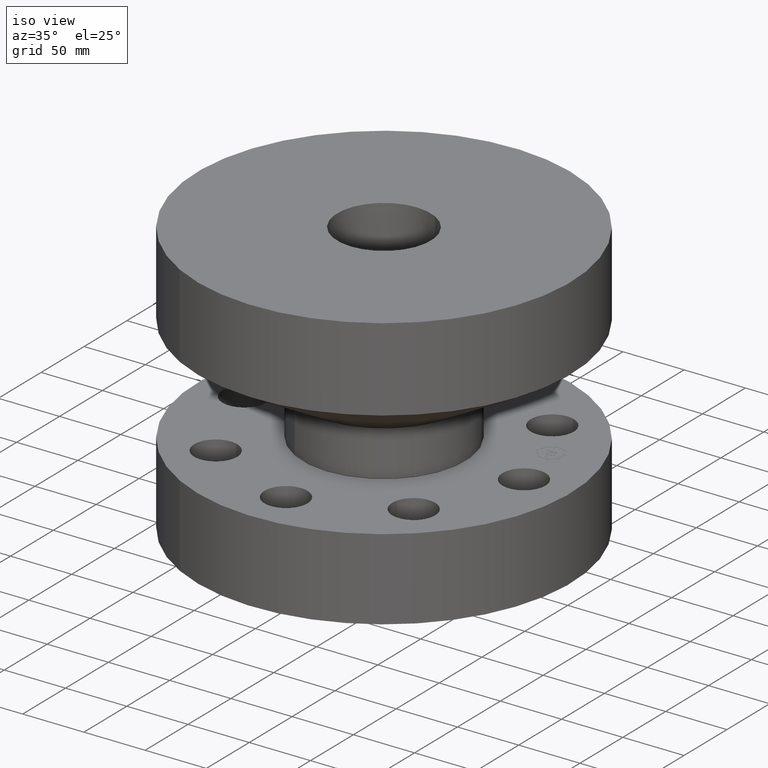
[diagram: clean part render]
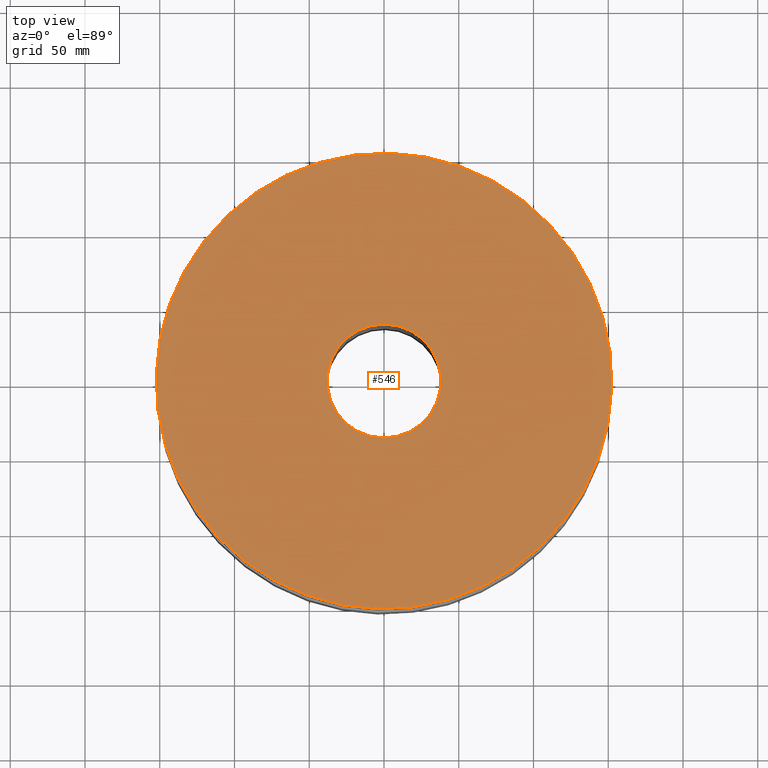
[diagram: tour spotlight — one face highlighted and labeled with its STEP entity id]
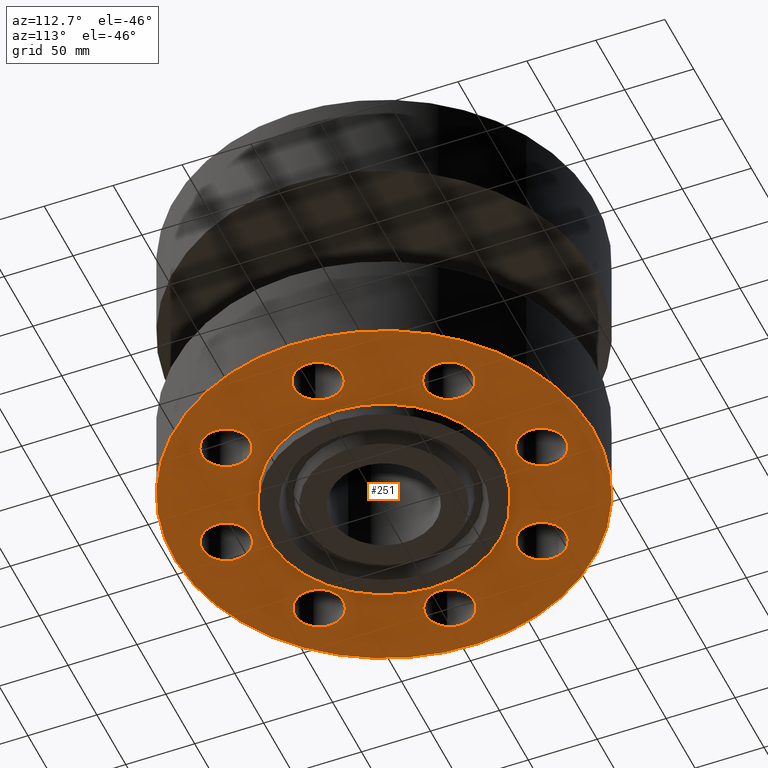
[diagram: tour spotlight — one face highlighted and labeled with its STEP entity id]
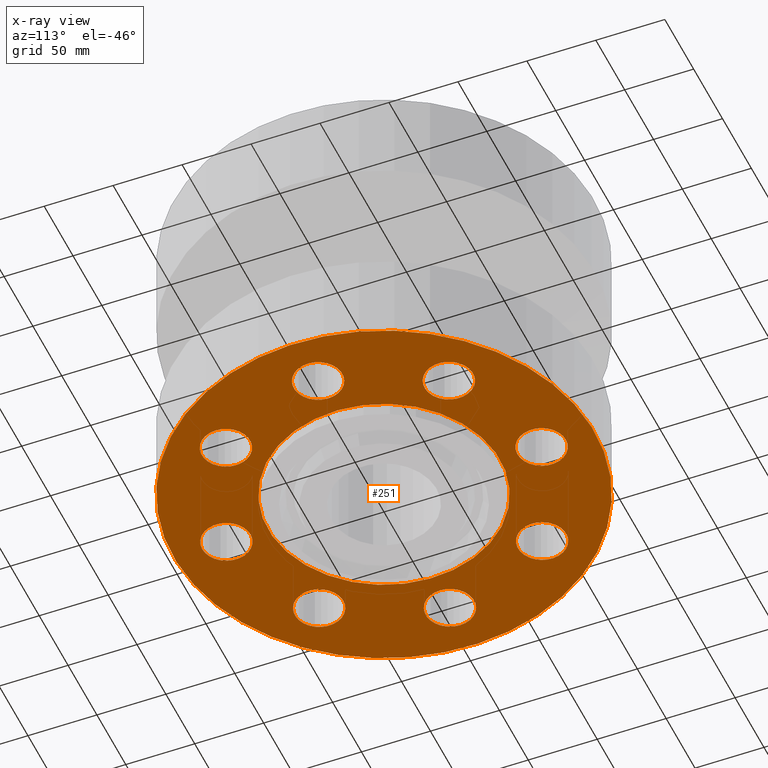
[diagram: x-ray of the same camera — body ghosted, this tour face saturated]
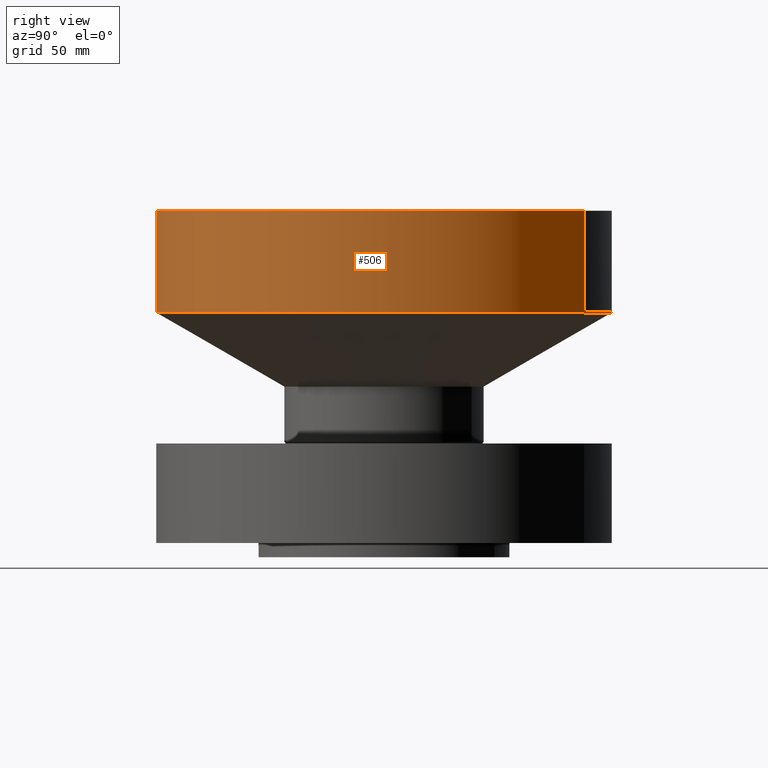
[diagram: tour spotlight — one face highlighted and labeled with its STEP entity id]
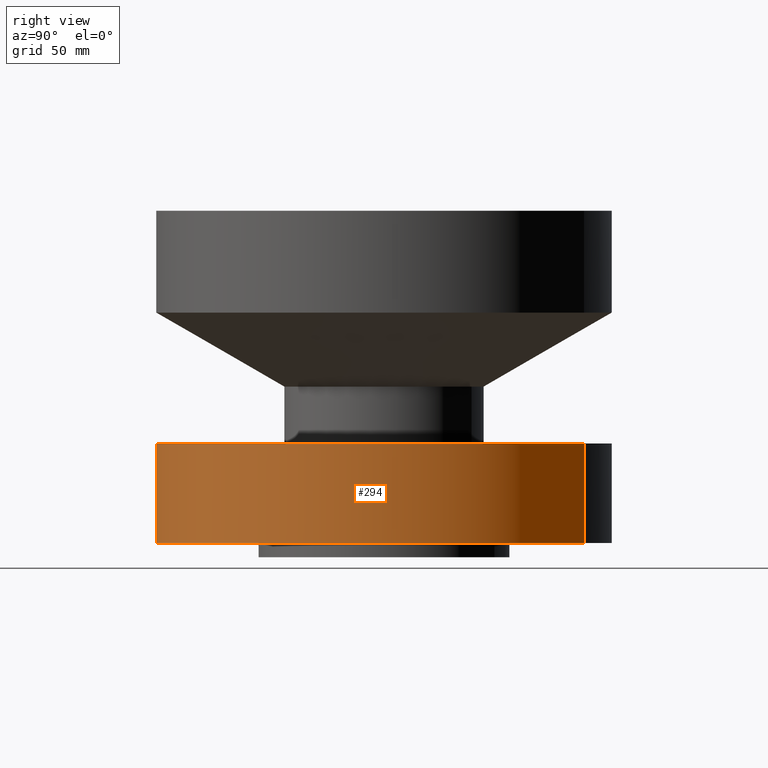
[diagram: tour spotlight — one face highlighted and labeled with its STEP entity id]
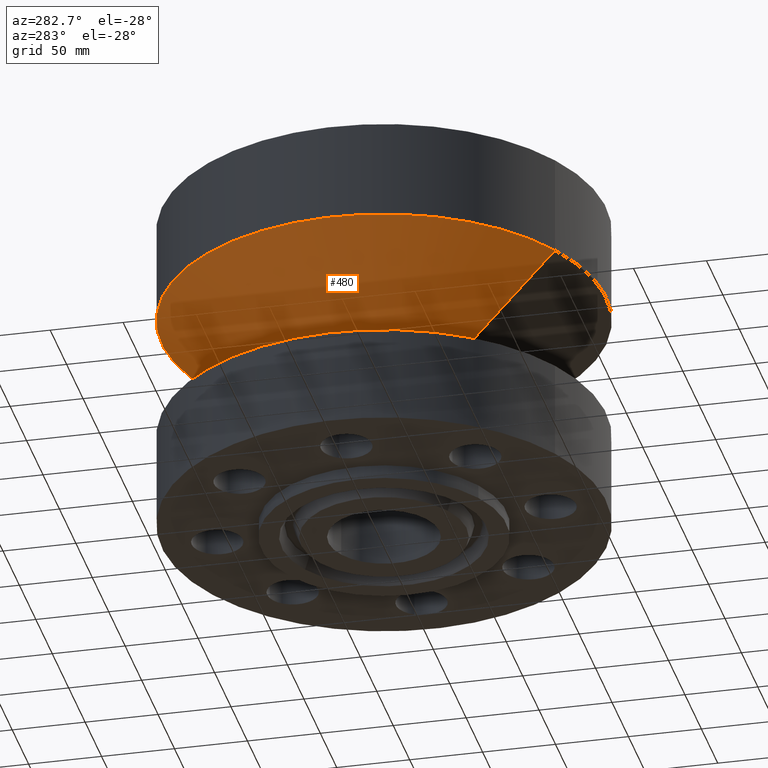
[diagram: tour spotlight — one face highlighted and labeled with its STEP entity id]
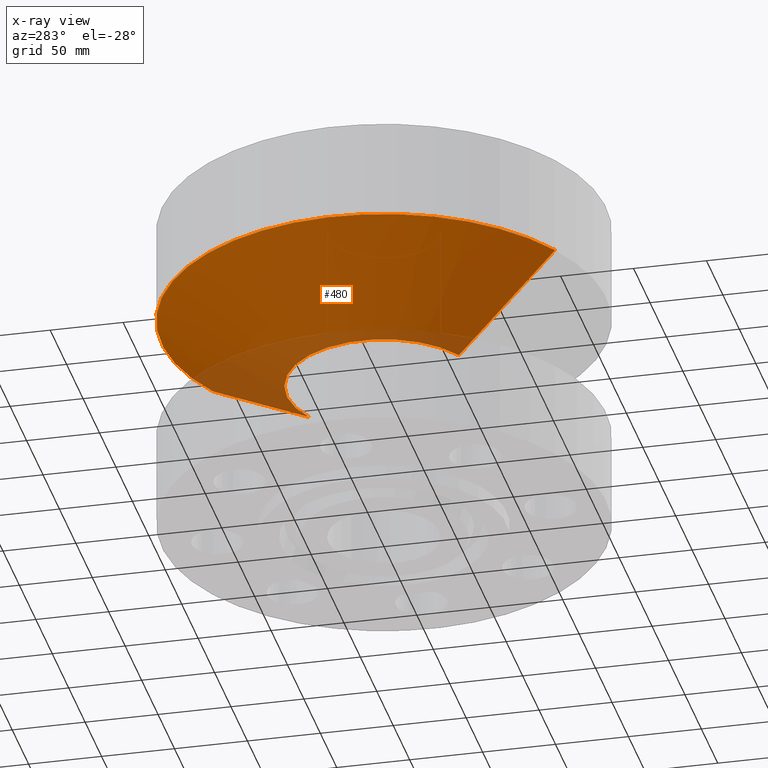
[diagram: x-ray of the same camera — body ghosted, this tour face saturated]
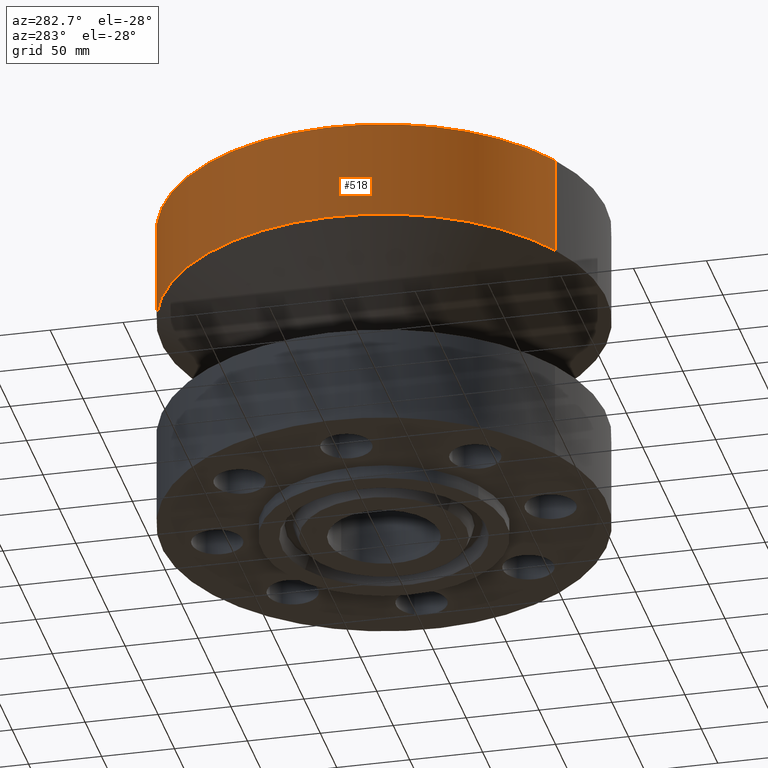
[diagram: tour spotlight — one face highlighted and labeled with its STEP entity id]
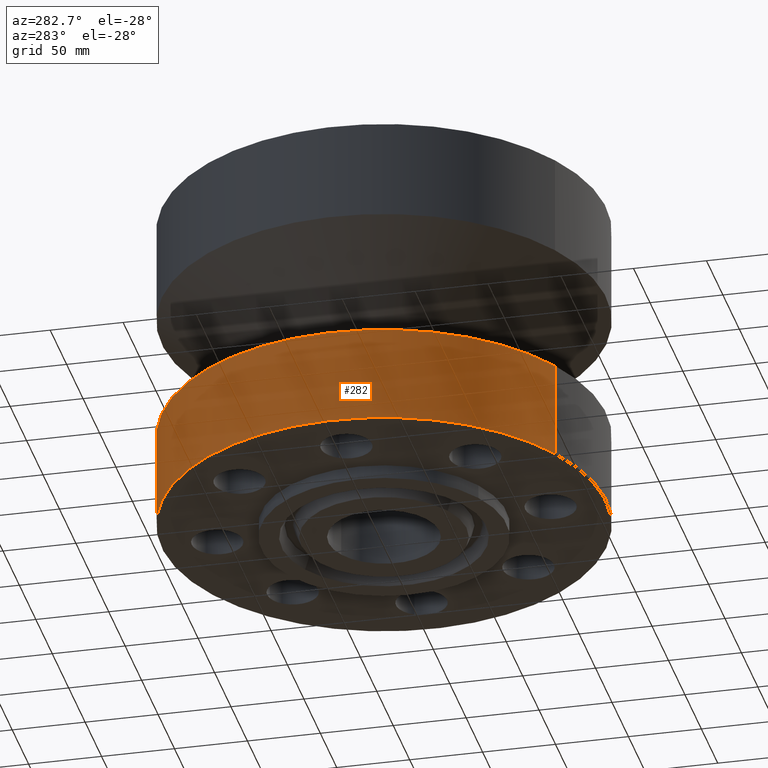
[diagram: tour spotlight — one face highlighted and labeled with its STEP entity id]
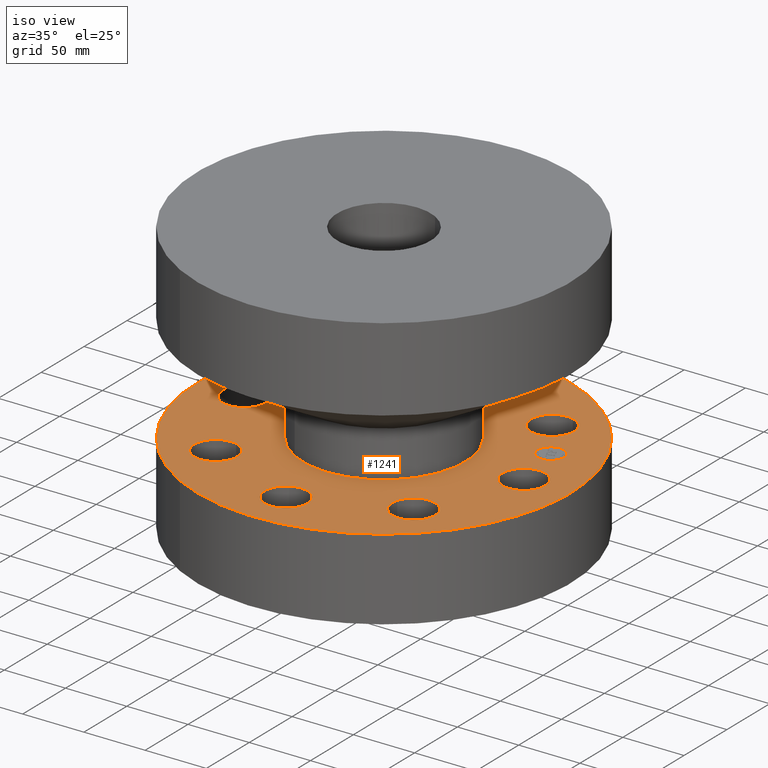
[diagram: tour spotlight — one face highlighted and labeled with its STEP entity id]
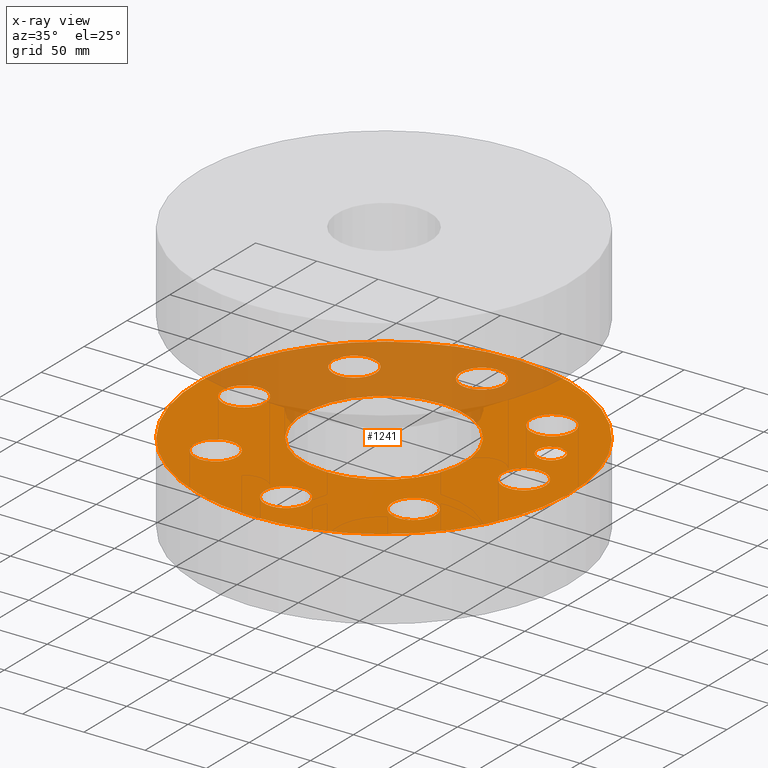
[diagram: x-ray of the same camera — body ghosted, this tour face saturated]
A machine part: a face-by-face anatomy tour. The part has 431 B-rep faces; the first image is the clean iso view, then the 8 largest visible faces are spotlighted one at a time (largest first), each with its STEP entity span.

Face 1 — top view, entity #546. In plain terms, the highlighted planar face has unit normal (0, 0, -1).
Definition (entity closure, byte-faithful):
#490=AXIS2_PLACEMENT_3D('Circle Axis2P3D',#488,#489,$) ;
#509=AXIS2_PLACEMENT_3D('Circle Axis2P3D',#507,#508,$) ;
#522=AXIS2_PLACEMENT_3D('Plane Axis2P3D',#519,#520,#521) ;
#530=AXIS2_PLACEMENT_3D('Circle Axis2P3D',#528,#529,$) ;
#539=AXIS2_PLACEMENT_3D('Circle Axis2P3D',#537,#538,$) ;
#485=CARTESIAN_POINT('Vertex',(2.87655323164,5.26549537136,8.75000000003)) ;
#488=CARTESIAN_POINT('Axis2P3D Location',(0.,0.,8.75000000004)) ;
#492=CARTESIAN_POINT('Vertex',(-2.87655323164,-5.26549537136,8.75000000003)) ;
#507=CARTESIAN_POINT('Axis2P3D Location',(0.,0.,8.75000000004)) ;
#519=CARTESIAN_POINT('Axis2P3D Location',(0.,6.00000000002,8.75000000003)) ;
#528=CARTESIAN_POINT('Axis2P3D Location',(0.,0.,8.75000000003)) ;
#532=CARTESIAN_POINT('Vertex',(-0.719138307909,-1.31637384284,8.75000000004)) ;
#534=CARTESIAN_POINT('Vertex',(0.719138307909,1.31637384284,8.75000000004)) ;
#537=CARTESIAN_POINT('Axis2P3D Location',(0.,0.,8.75000000003)) ;
#489=DIRECTION('Axis2P3D Direction',(0.,0.,-0.0393700787402)) ;
#508=DIRECTION('Axis2P3D Direction',(0.,0.,-0.0393700787402)) ;
#520=DIRECTION('Axis2P3D Direction',(0.,0.,-0.0393700787402)) ;
#521=DIRECTION('Axis2P3D XDirection',(0.0393700787402,0.,0.)) ;
#529=DIRECTION('Axis2P3D Direction',(0.,0.,-0.0393700787402)) ;
#538=DIRECTION('Axis2P3D Direction',(0.,0.,-0.0393700787402)) ;
#525=ORIENTED_EDGE('',*,*,#494,.F.) ;
#526=ORIENTED_EDGE('',*,*,#511,.F.) ;
#543=ORIENTED_EDGE('',*,*,#536,.T.) ;
#544=ORIENTED_EDGE('',*,*,#541,.T.) ;
#545=FACE_BOUND('',#542,.T.) ;
#546=ADVANCED_FACE('PartBody',(#527,#545),#523,.F.) ;
#491=CIRCLE('generated circle',#490,6.00000000002) ;
#510=CIRCLE('generated circle',#509,6.00000000002) ;
#531=CIRCLE('generated circle',#530,1.50000000001) ;
#540=CIRCLE('generated circle',#539,1.50000000001) ;
#494=EDGE_CURVE('',#486,#493,#491,.T.) ;
#511=EDGE_CURVE('',#493,#486,#510,.T.) ;
#536=EDGE_CURVE('',#533,#535,#531,.T.) ;
#541=EDGE_CURVE('',#535,#533,#540,.T.) ;
#524=EDGE_LOOP('',(#525,#526)) ;
#542=EDGE_LOOP('',(#543,#544)) ;
#527=FACE_OUTER_BOUND('',#524,.T.) ;
#523=PLANE('',#522) ;
#486=VERTEX_POINT('',#485) ;
#493=VERTEX_POINT('',#492) ;
#533=VERTEX_POINT('',#532) ;
#535=VERTEX_POINT('',#534) ;

Face 2 — auxiliary view, entity #251. An x-ray twin of the same camera follows (body ghosted, this face saturated) — the face is partly hidden behind the body. In plain terms, the highlighted planar face has unit normal (0, 0, -1).
Definition (entity closure, byte-faithful):
#51=AXIS2_PLACEMENT_3D('Circle Axis2P3D',#49,#50,$) ;
#78=AXIS2_PLACEMENT_3D('Plane Axis2P3D',#75,#76,#77) ;
#82=AXIS2_PLACEMENT_3D('Circle Axis2P3D',#80,#81,$) ;
#91=AXIS2_PLACEMENT_3D('Circle Axis2P3D',#89,#90,$) ;
#100=AXIS2_PLACEMENT_3D('Circle Axis2P3D',#98,#99,$) ;
#109=AXIS2_PLACEMENT_3D('Circle Axis2P3D',#107,#108,$) ;
#118=AXIS2_PLACEMENT_3D('Circle Axis2P3D',#116,#117,$) ;
#127=AXIS2_PLACEMENT_3D('Circle Axis2P3D',#125,#126,$) ;
#136=AXIS2_PLACEMENT_3D('Circle Axis2P3D',#134,#135,$) ;
#145=AXIS2_PLACEMENT_3D('Circle Axis2P3D',#143,#144,$) ;
#154=AXIS2_PLACEMENT_3D('Circle Axis2P3D',#152,#153,$) ;
#163=AXIS2_PLACEMENT_3D('Circle Axis2P3D',#161,#162,$) ;
#172=AXIS2_PLACEMENT_3D('Circle Axis2P3D',#170,#171,$) ;
#181=AXIS2_PLACEMENT_3D('Circle Axis2P3D',#179,#180,$) ;
#190=AXIS2_PLACEMENT_3D('Circle Axis2P3D',#188,#189,$) ;
#199=AXIS2_PLACEMENT_3D('Circle Axis2P3D',#197,#198,$) ;
#208=AXIS2_PLACEMENT_3D('Circle Axis2P3D',#206,#207,$) ;
#217=AXIS2_PLACEMENT_3D('Circle Axis2P3D',#215,#216,$) ;
#226=AXIS2_PLACEMENT_3D('Circle Axis2P3D',#224,#225,$) ;
#235=AXIS2_PLACEMENT_3D('Circle Axis2P3D',#233,#234,$) ;
#244=AXIS2_PLACEMENT_3D('Circle Axis2P3D',#242,#243,$) ;
#46=CARTESIAN_POINT('Vertex',(5.10553196772,0.330803621638,2.2401153548E-016)) ;
#49=CARTESIAN_POINT('Axis2P3D Location',(4.50000000002,0.,0.)) ;
#53=CARTESIAN_POINT('Vertex',(3.89446803231,-0.330803621638,2.2401153548E-016)) ;
#75=CARTESIAN_POINT('Axis2P3D Location',(0.,2.43537684644,0.)) ;
#80=CARTESIAN_POINT('Axis2P3D Location',(0.,0.,0.)) ;
#84=CARTESIAN_POINT('Vertex',(-2.87655323164,-5.26549537136,1.1189649382E-015)) ;
#86=CARTESIAN_POINT('Vertex',(2.87655323164,5.26549537136,1.1189649382E-015)) ;
#89=CARTESIAN_POINT('Axis2P3D Location',(0.,0.,0.)) ;
#98=CARTESIAN_POINT('Axis2P3D Location',(4.50000000002,0.,0.)) ;
#107=CARTESIAN_POINT('Axis2P3D Location',(0.,0.,0.)) ;
#111=CARTESIAN_POINT('Vertex',(1.58809709663,2.90699223627,5.59482469102E-016)) ;
#113=CARTESIAN_POINT('Vertex',(-1.58809709663,-2.90699223627,5.59482469102E-016)) ;
#116=CARTESIAN_POINT('Axis2P3D Location',(0.,0.,0.)) ;
#125=CARTESIAN_POINT('Axis2P3D Location',(3.18198051535,-3.18198051535,0.)) ;
#129=CARTESIAN_POINT('Vertex',(3.84406976004,-3.37624279184,0.)) ;
#131=CARTESIAN_POINT('Vertex',(2.51989127066,-2.98771823886,0.)) ;
#134=CARTESIAN_POINT('Axis2P3D Location',(3.18198051535,-3.18198051535,0.)) ;
#143=CARTESIAN_POINT('Axis2P3D Location',(-4.19611851827E-016,-4.50000000002,0.)) ;
#147=CARTESIAN_POINT('Vertex',(0.330803621638,-5.10553196772,0.)) ;
#149=CARTESIAN_POINT('Vertex',(-0.330803621638,-3.89446803231,0.)) ;
#152=CARTESIAN_POINT('Axis2P3D Location',(5.59482469102E-016,-4.50000000002,0.)) ;
#161=CARTESIAN_POINT('Axis2P3D Location',(-3.18198051535,-3.18198051535,0.)) ;
#165=CARTESIAN_POINT('Vertex',(-3.37624279184,-3.84406976004,0.)) ;
#167=CARTESIAN_POINT('Vertex',(-2.98771823886,-2.51989127066,0.)) ;
#170=CARTESIAN_POINT('Axis2P3D Location',(-3.18198051535,-3.18198051535,0.)) ;
#179=CARTESIAN_POINT('Axis2P3D Location',(-4.50000000002,-8.39223703654E-016,0.)) ;
#183=CARTESIAN_POINT('Vertex',(-5.10553196772,-0.330803621638,0.)) ;
#185=CARTESIAN_POINT('Vertex',(-3.89446803231,0.330803621638,0.)) ;
#188=CARTESIAN_POINT('Axis2P3D Location',(-4.50000000002,-5.59482469102E-016,0.)) ;
#197=CARTESIAN_POINT('Axis2P3D Location',(-3.18198051535,3.18198051535,0.)) ;
#201=CARTESIAN_POINT('Vertex',(-3.84406976004,3.37624279184,0.)) ;
#203=CARTESIAN_POINT('Vertex',(-2.51989127066,2.98771823886,0.)) ;
#206=CARTESIAN_POINT('Axis2P3D Location',(-3.18198051535,3.18198051535,0.)) ;
#215=CARTESIAN_POINT('Axis2P3D Location',(-6.99353086378E-016,4.50000000002,0.)) ;
#219=CARTESIAN_POINT('Vertex',(-0.330803621638,5.10553196772,0.)) ;
#221=CARTESIAN_POINT('Vertex',(0.330803621638,3.89446803231,0.)) ;
#224=CARTESIAN_POINT('Axis2P3D Location',(-1.1189649382E-015,4.50000000002,0.)) ;
#233=CARTESIAN_POINT('Axis2P3D Location',(3.18198051535,3.18198051535,0.)) ;
#237=CARTESIAN_POINT('Vertex',(3.37624279184,3.84406976004,0.)) ;
#239=CARTESIAN_POINT('Vertex',(2.98771823886,2.51989127066,0.)) ;
#242=CARTESIAN_POINT('Axis2P3D Location',(3.18198051535,3.18198051535,0.)) ;
#50=DIRECTION('Axis2P3D Direction',(0.,-0.,0.0393700787402)) ;
#76=DIRECTION('Axis2P3D Direction',(0.,0.,-0.0393700787402)) ;
#77=DIRECTION('Axis2P3D XDirection',(0.0393700787402,0.,0.)) ;
#81=DIRECTION('Axis2P3D Direction',(0.,0.,-0.0393700787402)) ;
#90=DIRECTION('Axis2P3D Direction',(0.,0.,-0.0393700787402)) ;
#99=DIRECTION('Axis2P3D Direction',(0.,0.,-0.0393700787402)) ;
#108=DIRECTION('Axis2P3D Direction',(0.,0.,-0.0393700787402)) ;
#117=DIRECTION('Axis2P3D Direction',(0.,0.,-0.0393700787402)) ;
#126=DIRECTION('Axis2P3D Direction',(0.,0.,-0.0393700787402)) ;
#135=DIRECTION('Axis2P3D Direction',(0.,0.,-0.0393700787402)) ;
#144=DIRECTION('Axis2P3D Direction',(0.,0.,-0.0393700787402)) ;
#153=DIRECTION('Axis2P3D Direction',(0.,0.,-0.0393700787402)) ;
#162=DIRECTION('Axis2P3D Direction',(0.,0.,-0.0393700787402)) ;
#171=DIRECTION('Axis2P3D Direction',(0.,0.,-0.0393700787402)) ;
#180=DIRECTION('Axis2P3D Direction',(0.,0.,-0.0393700787402)) ;
#189=DIRECTION('Axis2P3D Direction',(0.,0.,-0.0393700787402)) ;
#198=DIRECTION('Axis2P3D Direction',(0.,0.,-0.0393700787402)) ;
#207=DIRECTION('Axis2P3D Direction',(0.,0.,-0.0393700787402)) ;
#216=DIRECTION('Axis2P3D Direction',(0.,0.,-0.0393700787402)) ;
#225=DIRECTION('Axis2P3D Direction',(0.,0.,-0.0393700787402)) ;
#234=DIRECTION('Axis2P3D Direction',(0.,0.,-0.0393700787402)) ;
#243=DIRECTION('Axis2P3D Direction',(0.,0.,-0.0393700787402)) ;
#95=ORIENTED_EDGE('',*,*,#88,.T.) ;
#96=ORIENTED_EDGE('',*,*,#93,.T.) ;
#104=ORIENTED_EDGE('',*,*,#102,.F.) ;
#105=ORIENTED_EDGE('',*,*,#55,.F.) ;
#122=ORIENTED_EDGE('',*,*,#115,.F.) ;
#123=ORIENTED_EDGE('',*,*,#120,.F.) ;
#140=ORIENTED_EDGE('',*,*,#133,.F.) ;
#141=ORIENTED_EDGE('',*,*,#138,.F.) ;
#158=ORIENTED_EDGE('',*,*,#151,.F.) ;
#159=ORIENTED_EDGE('',*,*,#156,.F.) ;
#176=ORIENTED_EDGE('',*,*,#169,.F.) ;
#177=ORIENTED_EDGE('',*,*,#174,.F.) ;
#194=ORIENTED_EDGE('',*,*,#187,.F.) ;
#195=ORIENTED_EDGE('',*,*,#192,.F.) ;
#212=ORIENTED_EDGE('',*,*,#205,.F.) ;
#213=ORIENTED_EDGE('',*,*,#210,.F.) ;
#230=ORIENTED_EDGE('',*,*,#223,.F.) ;
#231=ORIENTED_EDGE('',*,*,#228,.F.) ;
#248=ORIENTED_EDGE('',*,*,#241,.F.) ;
#249=ORIENTED_EDGE('',*,*,#246,.F.) ;
#106=FACE_BOUND('',#103,.T.) ;
#124=FACE_BOUND('',#121,.T.) ;
#142=FACE_BOUND('',#139,.T.) ;
#160=FACE_BOUND('',#157,.T.) ;
#178=FACE_BOUND('',#175,.T.) ;
#196=FACE_BOUND('',#193,.T.) ;
#214=FACE_BOUND('',#211,.T.) ;
#232=FACE_BOUND('',#229,.T.) ;
#250=FACE_BOUND('',#247,.T.) ;
#251=ADVANCED_FACE('PartBody',(#97,#106,#124,#142,#160,#178,#196,#214,#232,#250),#79,.T.) ;
#52=CIRCLE('generated circle',#51,0.690000000003) ;
#83=CIRCLE('generated circle',#82,6.00000000002) ;
#92=CIRCLE('generated circle',#91,6.00000000002) ;
#101=CIRCLE('generated circle',#100,0.690000000003) ;
#110=CIRCLE('generated circle',#109,3.31250000001) ;
#119=CIRCLE('generated circle',#118,3.31250000001) ;
#128=CIRCLE('generated circle',#127,0.690000000003) ;
#137=CIRCLE('generated circle',#136,0.690000000003) ;
#146=CIRCLE('generated circle',#145,0.690000000003) ;
#155=CIRCLE('generated circle',#154,0.690000000003) ;
#164=CIRCLE('generated circle',#163,0.690000000003) ;
#173=CIRCLE('generated circle',#172,0.690000000003) ;
#182=CIRCLE('generated circle',#181,0.690000000003) ;
#191=CIRCLE('generated circle',#190,0.690000000003) ;
#200=CIRCLE('generated circle',#199,0.690000000003) ;
#209=CIRCLE('generated circle',#208,0.690000000003) ;
#218=CIRCLE('generated circle',#217,0.690000000003) ;
#227=CIRCLE('generated circle',#226,0.690000000003) ;
#236=CIRCLE('generated circle',#235,0.690000000003) ;
#245=CIRCLE('generated circle',#244,0.690000000003) ;
#55=EDGE_CURVE('',#47,#54,#52,.F.) ;
#88=EDGE_CURVE('',#85,#87,#83,.T.) ;
#93=EDGE_CURVE('',#87,#85,#92,.T.) ;
#102=EDGE_CURVE('',#54,#47,#101,.T.) ;
#115=EDGE_CURVE('',#112,#114,#110,.T.) ;
#120=EDGE_CURVE('',#114,#112,#119,.T.) ;
#133=EDGE_CURVE('',#130,#132,#128,.T.) ;
#138=EDGE_CURVE('',#132,#130,#137,.T.) ;
#151=EDGE_CURVE('',#148,#150,#146,.T.) ;
#156=EDGE_CURVE('',#150,#148,#155,.T.) ;
#169=EDGE_CURVE('',#166,#168,#164,.T.) ;
#174=EDGE_CURVE('',#168,#166,#173,.T.) ;
#187=EDGE_CURVE('',#184,#186,#182,.T.) ;
#192=EDGE_CURVE('',#186,#184,#191,.T.) ;
#205=EDGE_CURVE('',#202,#204,#200,.T.) ;
#210=EDGE_CURVE('',#204,#202,#209,.T.) ;
#223=EDGE_CURVE('',#220,#222,#218,.T.) ;
#228=EDGE_CURVE('',#222,#220,#227,.T.) ;
#241=EDGE_CURVE('',#238,#240,#236,.T.) ;
#246=EDGE_CURVE('',#240,#238,#245,.T.) ;
#94=EDGE_LOOP('',(#95,#96)) ;
#103=EDGE_LOOP('',(#104,#105)) ;
#121=EDGE_LOOP('',(#122,#123)) ;
#139=EDGE_LOOP('',(#140,#141)) ;
#157=EDGE_LOOP('',(#158,#159)) ;
#175=EDGE_LOOP('',(#176,#177)) ;
#193=EDGE_LOOP('',(#194,#195)) ;
#211=EDGE_LOOP('',(#212,#213)) ;
#229=EDGE_LOOP('',(#230,#231)) ;
#247=EDGE_LOOP('',(#248,#249)) ;
#97=FACE_OUTER_BOUND('',#94,.T.) ;
#79=PLANE('',#78) ;
#47=VERTEX_POINT('',#46) ;
#54=VERTEX_POINT('',#53) ;
#85=VERTEX_POINT('',#84) ;
#87=VERTEX_POINT('',#86) ;
#112=VERTEX_POINT('',#111) ;
#114=VERTEX_POINT('',#113) ;
#130=VERTEX_POINT('',#129) ;
#132=VERTEX_POINT('',#131) ;
#148=VERTEX_POINT('',#147) ;
#150=VERTEX_POINT('',#149) ;
#166=VERTEX_POINT('',#165) ;
#168=VERTEX_POINT('',#167) ;
#184=VERTEX_POINT('',#183) ;
#186=VERTEX_POINT('',#185) ;
#202=VERTEX_POINT('',#201) ;
#204=VERTEX_POINT('',#203) ;
#220=VERTEX_POINT('',#219) ;
#222=VERTEX_POINT('',#221) ;
#238=VERTEX_POINT('',#237) ;
#240=VERTEX_POINT('',#239) ;

Face 3 — right view, entity #506. In plain terms, the highlighted cylindrical surface (partial cylindrical patch) has radius 152.4 mm, axis along (0, 0, -1).
Definition (entity closure, byte-faithful):
#255=AXIS2_PLACEMENT_3D('Cylinder Axis2P3D',#252,#253,#254) ;
#452=AXIS2_PLACEMENT_3D('Circle Axis2P3D',#450,#451,$) ;
#490=AXIS2_PLACEMENT_3D('Circle Axis2P3D',#488,#489,$) ;
#252=CARTESIAN_POINT('Axis2P3D Location',(0.,0.,4.18750000002)) ;
#447=CARTESIAN_POINT('Vertex',(2.87655323164,5.26549537136,6.06855715854)) ;
#450=CARTESIAN_POINT('Axis2P3D Location',(0.,0.,6.06855715854)) ;
#454=CARTESIAN_POINT('Vertex',(-2.87655323164,-5.26549537136,6.06855715854)) ;
#481=CARTESIAN_POINT('Line Origine',(2.87655323164,5.26549537136,7.40927857929)) ;
#485=CARTESIAN_POINT('Vertex',(2.87655323164,5.26549537136,8.75000000003)) ;
#488=CARTESIAN_POINT('Axis2P3D Location',(0.,0.,8.75000000004)) ;
#492=CARTESIAN_POINT('Vertex',(-2.87655323164,-5.26549537136,8.75000000003)) ;
#495=CARTESIAN_POINT('Line Origine',(-2.87655323164,-5.26549537136,7.40927857929)) ;
#253=DIRECTION('Axis2P3D Direction',(0.,0.,-0.0393700787402)) ;
#254=DIRECTION('Axis2P3D XDirection',(-0.0188750212049,-0.0345504945626,0.)) ;
#451=DIRECTION('Axis2P3D Direction',(-0.,0.,0.0393700787402)) ;
#482=DIRECTION('Vector Direction',(0.,0.,-0.0393700787402)) ;
#489=DIRECTION('Axis2P3D Direction',(0.,0.,-0.0393700787402)) ;
#496=DIRECTION('Vector Direction',(0.,0.,-0.0393700787402)) ;
#483=VECTOR('Line Direction',#482,0.0393700787402) ;
#497=VECTOR('Line Direction',#496,0.0393700787402) ;
#501=ORIENTED_EDGE('',*,*,#456,.F.) ;
#502=ORIENTED_EDGE('',*,*,#487,.T.) ;
#503=ORIENTED_EDGE('',*,*,#494,.T.) ;
#504=ORIENTED_EDGE('',*,*,#499,.F.) ;
#506=ADVANCED_FACE('PartBody',(#505),#256,.T.) ;
#453=CIRCLE('generated circle',#452,6.00000000002) ;
#491=CIRCLE('generated circle',#490,6.00000000002) ;
#256=CYLINDRICAL_SURFACE('generated cylinder',#255,6.00000000002) ;
#456=EDGE_CURVE('',#448,#455,#453,.F.) ;
#487=EDGE_CURVE('',#448,#486,#484,.F.) ;
#494=EDGE_CURVE('',#486,#493,#491,.T.) ;
#499=EDGE_CURVE('',#455,#493,#498,.F.) ;
#500=EDGE_LOOP('',(#501,#502,#503,#504)) ;
#505=FACE_OUTER_BOUND('',#500,.T.) ;
#484=LINE('Line',#481,#483) ;
#498=LINE('Line',#495,#497) ;
#448=VERTEX_POINT('',#447) ;
#455=VERTEX_POINT('',#454) ;
#486=VERTEX_POINT('',#485) ;
#493=VERTEX_POINT('',#492) ;

Face 4 — right view, entity #294. In plain terms, the highlighted cylindrical surface (partial cylindrical patch) has radius 152.4 mm, axis along (0, 0, -1).
Definition (entity closure, byte-faithful):
#91=AXIS2_PLACEMENT_3D('Circle Axis2P3D',#89,#90,$) ;
#255=AXIS2_PLACEMENT_3D('Cylinder Axis2P3D',#252,#253,#254) ;
#285=AXIS2_PLACEMENT_3D('Circle Axis2P3D',#283,#284,$) ;
#84=CARTESIAN_POINT('Vertex',(-2.87655323164,-5.26549537136,1.1189649382E-015)) ;
#86=CARTESIAN_POINT('Vertex',(2.87655323164,5.26549537136,1.1189649382E-015)) ;
#89=CARTESIAN_POINT('Axis2P3D Location',(0.,0.,0.)) ;
#252=CARTESIAN_POINT('Axis2P3D Location',(0.,0.,4.18750000002)) ;
#257=CARTESIAN_POINT('Line Origine',(-2.87655323164,-5.26549537136,7.40927857929)) ;
#261=CARTESIAN_POINT('Vertex',(-2.87655323164,-5.26549537136,2.62000000001)) ;
#268=CARTESIAN_POINT('Vertex',(2.87655323164,5.26549537136,2.62000000001)) ;
#271=CARTESIAN_POINT('Line Origine',(2.87655323164,5.26549537136,7.40927857929)) ;
#283=CARTESIAN_POINT('Axis2P3D Location',(0.,0.,2.62000000001)) ;
#90=DIRECTION('Axis2P3D Direction',(0.,0.,-0.0393700787402)) ;
#253=DIRECTION('Axis2P3D Direction',(0.,0.,-0.0393700787402)) ;
#254=DIRECTION('Axis2P3D XDirection',(-0.0188750212049,-0.0345504945626,0.)) ;
#258=DIRECTION('Vector Direction',(0.,0.,-0.0393700787402)) ;
#272=DIRECTION('Vector Direction',(0.,0.,-0.0393700787402)) ;
#284=DIRECTION('Axis2P3D Direction',(0.,0.,-0.0393700787402)) ;
#259=VECTOR('Line Direction',#258,0.0393700787402) ;
#273=VECTOR('Line Direction',#272,0.0393700787402) ;
#289=ORIENTED_EDGE('',*,*,#93,.F.) ;
#290=ORIENTED_EDGE('',*,*,#275,.T.) ;
#291=ORIENTED_EDGE('',*,*,#287,.T.) ;
#292=ORIENTED_EDGE('',*,*,#263,.F.) ;
#294=ADVANCED_FACE('PartBody',(#293),#256,.T.) ;
#92=CIRCLE('generated circle',#91,6.00000000002) ;
#286=CIRCLE('generated circle',#285,6.00000000002) ;
#256=CYLINDRICAL_SURFACE('generated cylinder',#255,6.00000000002) ;
#93=EDGE_CURVE('',#87,#85,#92,.T.) ;
#263=EDGE_CURVE('',#85,#262,#260,.F.) ;
#275=EDGE_CURVE('',#87,#269,#274,.F.) ;
#287=EDGE_CURVE('',#269,#262,#286,.T.) ;
#288=EDGE_LOOP('',(#289,#290,#291,#292)) ;
#293=FACE_OUTER_BOUND('',#288,.T.) ;
#260=LINE('Line',#257,#259) ;
#274=LINE('Line',#271,#273) ;
#85=VERTEX_POINT('',#84) ;
#87=VERTEX_POINT('',#86) ;
#262=VERTEX_POINT('',#261) ;
#269=VERTEX_POINT('',#268) ;

Face 5 — auxiliary view, entity #480. An x-ray twin of the same camera follows (body ghosted, this face saturated) — the face is partly hidden behind the body. In plain terms, the highlighted conical surface has half-angle 60 deg.
Definition (entity closure, byte-faithful):
#428=AXIS2_PLACEMENT_3D('Circle Axis2P3D',#426,#427,$) ;
#441=AXIS2_PLACEMENT_3D('Cone Axis2P3D',#438,#439,#440) ;
#471=AXIS2_PLACEMENT_3D('Circle Axis2P3D',#469,#470,$) ;
#404=CARTESIAN_POINT('Vertex',(1.25849203884,2.30365422497,4.12000000002)) ;
#411=CARTESIAN_POINT('Vertex',(-1.25849203884,-2.30365422497,4.12000000002)) ;
#426=CARTESIAN_POINT('Axis2P3D Location',(0.,0.,4.12000000002)) ;
#438=CARTESIAN_POINT('Axis2P3D Location',(0.,0.,4.12000000002)) ;
#443=CARTESIAN_POINT('Line Origine',(2.06752263524,3.78457479817,5.09427857928)) ;
#447=CARTESIAN_POINT('Vertex',(2.87655323164,5.26549537136,6.06855715854)) ;
#454=CARTESIAN_POINT('Vertex',(-2.87655323164,-5.26549537136,6.06855715854)) ;
#457=CARTESIAN_POINT('Line Origine',(-2.06752263524,-3.78457479817,5.09427857928)) ;
#469=CARTESIAN_POINT('Axis2P3D Location',(0.,0.,6.06855715854)) ;
#427=DIRECTION('Axis2P3D Direction',(0.,0.,-0.0393700787402)) ;
#439=DIRECTION('Axis2P3D Direction',(-0.,-0.,0.0393700787402)) ;
#440=DIRECTION('Axis2P3D XDirection',(0.0188750212049,0.0345504945626,0.)) ;
#444=DIRECTION('Vector Direction',(0.0163462478604,0.0299216060045,0.0196850393701)) ;
#458=DIRECTION('Vector Direction',(-0.0163462478604,-0.0299216060045,0.0196850393701)) ;
#470=DIRECTION('Axis2P3D Direction',(-0.,0.,0.0393700787402)) ;
#445=VECTOR('Line Direction',#444,0.0393700787402) ;
#459=VECTOR('Line Direction',#458,0.0393700787402) ;
#475=ORIENTED_EDGE('',*,*,#430,.F.) ;
#476=ORIENTED_EDGE('',*,*,#461,.T.) ;
#477=ORIENTED_EDGE('',*,*,#473,.T.) ;
#478=ORIENTED_EDGE('',*,*,#449,.F.) ;
#480=ADVANCED_FACE('PartBody',(#479),#442,.T.) ;
#429=CIRCLE('generated circle',#428,2.62500000001) ;
#472=CIRCLE('generated circle',#471,6.00000000002) ;
#442=CONICAL_SURFACE('Cone',#441,2.62500000001,1.0471975512) ;
#430=EDGE_CURVE('',#412,#405,#429,.T.) ;
#449=EDGE_CURVE('',#405,#448,#446,.T.) ;
#461=EDGE_CURVE('',#412,#455,#460,.T.) ;
#473=EDGE_CURVE('',#455,#448,#472,.F.) ;
#474=EDGE_LOOP('',(#475,#476,#477,#478)) ;
#479=FACE_OUTER_BOUND('',#474,.T.) ;
#446=LINE('Line',#443,#445) ;
#460=LINE('Line',#457,#459) ;
#405=VERTEX_POINT('',#404) ;
#412=VERTEX_POINT('',#411) ;
#448=VERTEX_POINT('',#447) ;
#455=VERTEX_POINT('',#454) ;

Face 6 — auxiliary view, entity #518. In plain terms, the highlighted cylindrical surface (partial cylindrical patch) has radius 152.4 mm, axis along (0, 0, -1).
Definition (entity closure, byte-faithful):
#255=AXIS2_PLACEMENT_3D('Cylinder Axis2P3D',#252,#253,#254) ;
#471=AXIS2_PLACEMENT_3D('Circle Axis2P3D',#469,#470,$) ;
#509=AXIS2_PLACEMENT_3D('Circle Axis2P3D',#507,#508,$) ;
#252=CARTESIAN_POINT('Axis2P3D Location',(0.,0.,4.18750000002)) ;
#447=CARTESIAN_POINT('Vertex',(2.87655323164,5.26549537136,6.06855715854)) ;
#454=CARTESIAN_POINT('Vertex',(-2.87655323164,-5.26549537136,6.06855715854)) ;
#469=CARTESIAN_POINT('Axis2P3D Location',(0.,0.,6.06855715854)) ;
#481=CARTESIAN_POINT('Line Origine',(2.87655323164,5.26549537136,7.40927857929)) ;
#485=CARTESIAN_POINT('Vertex',(2.87655323164,5.26549537136,8.75000000003)) ;
#492=CARTESIAN_POINT('Vertex',(-2.87655323164,-5.26549537136,8.75000000003)) ;
#495=CARTESIAN_POINT('Line Origine',(-2.87655323164,-5.26549537136,7.40927857929)) ;
#507=CARTESIAN_POINT('Axis2P3D Location',(0.,0.,8.75000000004)) ;
#253=DIRECTION('Axis2P3D Direction',(0.,0.,-0.0393700787402)) ;
#254=DIRECTION('Axis2P3D XDirection',(-0.0188750212049,-0.0345504945626,0.)) ;
#470=DIRECTION('Axis2P3D Direction',(-0.,0.,0.0393700787402)) ;
#482=DIRECTION('Vector Direction',(0.,0.,-0.0393700787402)) ;
#496=DIRECTION('Vector Direction',(0.,0.,-0.0393700787402)) ;
#508=DIRECTION('Axis2P3D Direction',(0.,0.,-0.0393700787402)) ;
#483=VECTOR('Line Direction',#482,0.0393700787402) ;
#497=VECTOR('Line Direction',#496,0.0393700787402) ;
#513=ORIENTED_EDGE('',*,*,#473,.F.) ;
#514=ORIENTED_EDGE('',*,*,#499,.T.) ;
#515=ORIENTED_EDGE('',*,*,#511,.T.) ;
#516=ORIENTED_EDGE('',*,*,#487,.F.) ;
#518=ADVANCED_FACE('PartBody',(#517),#256,.T.) ;
#472=CIRCLE('generated circle',#471,6.00000000002) ;
#510=CIRCLE('generated circle',#509,6.00000000002) ;
#256=CYLINDRICAL_SURFACE('generated cylinder',#255,6.00000000002) ;
#473=EDGE_CURVE('',#455,#448,#472,.F.) ;
#487=EDGE_CURVE('',#448,#486,#484,.F.) ;
#499=EDGE_CURVE('',#455,#493,#498,.F.) ;
#511=EDGE_CURVE('',#493,#486,#510,.T.) ;
#512=EDGE_LOOP('',(#513,#514,#515,#516)) ;
#517=FACE_OUTER_BOUND('',#512,.T.) ;
#484=LINE('Line',#481,#483) ;
#498=LINE('Line',#495,#497) ;
#448=VERTEX_POINT('',#447) ;
#455=VERTEX_POINT('',#454) ;
#486=VERTEX_POINT('',#485) ;
#493=VERTEX_POINT('',#492) ;

Face 7 — auxiliary view, entity #282. In plain terms, the highlighted cylindrical surface (partial cylindrical patch) has radius 152.4 mm, axis along (0, 0, -1).
Definition (entity closure, byte-faithful):
#82=AXIS2_PLACEMENT_3D('Circle Axis2P3D',#80,#81,$) ;
#255=AXIS2_PLACEMENT_3D('Cylinder Axis2P3D',#252,#253,#254) ;
#266=AXIS2_PLACEMENT_3D('Circle Axis2P3D',#264,#265,$) ;
#80=CARTESIAN_POINT('Axis2P3D Location',(0.,0.,0.)) ;
#84=CARTESIAN_POINT('Vertex',(-2.87655323164,-5.26549537136,1.1189649382E-015)) ;
#86=CARTESIAN_POINT('Vertex',(2.87655323164,5.26549537136,1.1189649382E-015)) ;
#252=CARTESIAN_POINT('Axis2P3D Location',(0.,0.,4.18750000002)) ;
#257=CARTESIAN_POINT('Line Origine',(-2.87655323164,-5.26549537136,7.40927857929)) ;
#261=CARTESIAN_POINT('Vertex',(-2.87655323164,-5.26549537136,2.62000000001)) ;
#264=CARTESIAN_POINT('Axis2P3D Location',(0.,0.,2.62000000001)) ;
#268=CARTESIAN_POINT('Vertex',(2.87655323164,5.26549537136,2.62000000001)) ;
#271=CARTESIAN_POINT('Line Origine',(2.87655323164,5.26549537136,7.40927857929)) ;
#81=DIRECTION('Axis2P3D Direction',(0.,0.,-0.0393700787402)) ;
#253=DIRECTION('Axis2P3D Direction',(0.,0.,-0.0393700787402)) ;
#254=DIRECTION('Axis2P3D XDirection',(-0.0188750212049,-0.0345504945626,0.)) ;
#258=DIRECTION('Vector Direction',(0.,0.,-0.0393700787402)) ;
#265=DIRECTION('Axis2P3D Direction',(0.,0.,-0.0393700787402)) ;
#272=DIRECTION('Vector Direction',(0.,0.,-0.0393700787402)) ;
#259=VECTOR('Line Direction',#258,0.0393700787402) ;
#273=VECTOR('Line Direction',#272,0.0393700787402) ;
#277=ORIENTED_EDGE('',*,*,#88,.F.) ;
#278=ORIENTED_EDGE('',*,*,#263,.T.) ;
#279=ORIENTED_EDGE('',*,*,#270,.T.) ;
#280=ORIENTED_EDGE('',*,*,#275,.F.) ;
#282=ADVANCED_FACE('PartBody',(#281),#256,.T.) ;
#83=CIRCLE('generated circle',#82,6.00000000002) ;
#267=CIRCLE('generated circle',#266,6.00000000002) ;
#256=CYLINDRICAL_SURFACE('generated cylinder',#255,6.00000000002) ;
#88=EDGE_CURVE('',#85,#87,#83,.T.) ;
#263=EDGE_CURVE('',#85,#262,#260,.F.) ;
#270=EDGE_CURVE('',#262,#269,#267,.T.) ;
#275=EDGE_CURVE('',#87,#269,#274,.F.) ;
#276=EDGE_LOOP('',(#277,#278,#279,#280)) ;
#281=FACE_OUTER_BOUND('',#276,.T.) ;
#260=LINE('Line',#257,#259) ;
#274=LINE('Line',#271,#273) ;
#85=VERTEX_POINT('',#84) ;
#87=VERTEX_POINT('',#86) ;
#262=VERTEX_POINT('',#261) ;
#269=VERTEX_POINT('',#268) ;

Face 8 — iso view, entity #1241. An x-ray twin of the same camera follows (body ghosted, this face saturated) — the face is partly hidden behind the body. In plain terms, the highlighted planar face has unit normal (0, 0, -1).
Definition (entity closure, byte-faithful):
#65=AXIS2_PLACEMENT_3D('Circle Axis2P3D',#63,#64,$) ;
#266=AXIS2_PLACEMENT_3D('Circle Axis2P3D',#264,#265,$) ;
#285=AXIS2_PLACEMENT_3D('Circle Axis2P3D',#283,#284,$) ;
#302=AXIS2_PLACEMENT_3D('Circle Axis2P3D',#300,#301,$) ;
#337=AXIS2_PLACEMENT_3D('Circle Axis2P3D',#335,#336,$) ;
#867=AXIS2_PLACEMENT_3D('Circle Axis2P3D',#865,#866,$) ;
#898=AXIS2_PLACEMENT_3D('Circle Axis2P3D',#896,#897,$) ;
#910=AXIS2_PLACEMENT_3D('Circle Axis2P3D',#908,#909,$) ;
#941=AXIS2_PLACEMENT_3D('Circle Axis2P3D',#939,#940,$) ;
#953=AXIS2_PLACEMENT_3D('Circle Axis2P3D',#951,#952,$) ;
#984=AXIS2_PLACEMENT_3D('Circle Axis2P3D',#982,#983,$) ;
#996=AXIS2_PLACEMENT_3D('Circle Axis2P3D',#994,#995,$) ;
#1027=AXIS2_PLACEMENT_3D('Circle Axis2P3D',#1025,#1026,$) ;
#1039=AXIS2_PLACEMENT_3D('Circle Axis2P3D',#1037,#1038,$) ;
#1070=AXIS2_PLACEMENT_3D('Circle Axis2P3D',#1068,#1069,$) ;
#1082=AXIS2_PLACEMENT_3D('Circle Axis2P3D',#1080,#1081,$) ;
#1113=AXIS2_PLACEMENT_3D('Circle Axis2P3D',#1111,#1112,$) ;
#1125=AXIS2_PLACEMENT_3D('Circle Axis2P3D',#1123,#1124,$) ;
#1156=AXIS2_PLACEMENT_3D('Circle Axis2P3D',#1154,#1155,$) ;
#1168=AXIS2_PLACEMENT_3D('Circle Axis2P3D',#1166,#1167,$) ;
#1181=AXIS2_PLACEMENT_3D('Plane Axis2P3D',#1178,#1179,#1180) ;
#1225=AXIS2_PLACEMENT_3D('Circle Axis2P3D',#1223,#1224,$) ;
#1234=AXIS2_PLACEMENT_3D('Circle Axis2P3D',#1232,#1233,$) ;
#44=CARTESIAN_POINT('Vertex',(5.10553196772,0.330803621638,2.62000000001)) ;
#60=CARTESIAN_POINT('Vertex',(3.89446803231,-0.330803621638,2.62000000001)) ;
#63=CARTESIAN_POINT('Axis2P3D Location',(4.50000000002,0.,2.62000000001)) ;
#261=CARTESIAN_POINT('Vertex',(-2.87655323164,-5.26549537136,2.62000000001)) ;
#264=CARTESIAN_POINT('Axis2P3D Location',(0.,0.,2.62000000001)) ;
#268=CARTESIAN_POINT('Vertex',(2.87655323164,5.26549537136,2.62000000001)) ;
#283=CARTESIAN_POINT('Axis2P3D Location',(0.,0.,2.62000000001)) ;
#300=CARTESIAN_POINT('Axis2P3D Location',(0.,0.,2.62000000001)) ;
#304=CARTESIAN_POINT('Vertex',(1.25130065576,2.29049048654,2.62000000001)) ;
#306=CARTESIAN_POINT('Vertex',(-1.25130065576,-2.29049048654,2.62000000001)) ;
#335=CARTESIAN_POINT('Axis2P3D Location',(0.,0.,2.62000000001)) ;
#865=CARTESIAN_POINT('Axis2P3D Location',(4.50000000002,0.,2.62000000001)) ;
#886=CARTESIAN_POINT('Vertex',(3.84406976004,-3.37624279184,2.62000000001)) ;
#893=CARTESIAN_POINT('Vertex',(2.51989127066,-2.98771823886,2.62000000001)) ;
#896=CARTESIAN_POINT('Axis2P3D Location',(3.18198051535,-3.18198051535,2.62000000001)) ;
#908=CARTESIAN_POINT('Axis2P3D Location',(3.18198051535,-3.18198051535,2.62000000001)) ;
#929=CARTESIAN_POINT('Vertex',(0.330803621638,-5.10553196772,2.62000000001)) ;
#936=CARTESIAN_POINT('Vertex',(-0.330803621638,-3.89446803231,2.62000000001)) ;
#939=CARTESIAN_POINT('Axis2P3D Location',(2.75545529809E-016,-4.50000000002,2.62000000001)) ;
#951=CARTESIAN_POINT('Axis2P3D Location',(2.75545529809E-016,-4.50000000002,2.62000000001)) ;
#972=CARTESIAN_POINT('Vertex',(-3.37624279184,-3.84406976004,2.62000000001)) ;
#979=CARTESIAN_POINT('Vertex',(-2.98771823886,-2.51989127066,2.62000000001)) ;
#982=CARTESIAN_POINT('Axis2P3D Location',(-3.18198051535,-3.18198051535,2.62000000001)) ;
#994=CARTESIAN_POINT('Axis2P3D Location',(-3.18198051535,-3.18198051535,2.62000000001)) ;
#1015=CARTESIAN_POINT('Vertex',(-5.10553196772,-0.330803621638,2.62000000001)) ;
#1022=CARTESIAN_POINT('Vertex',(-3.89446803231,0.330803621638,2.62000000001)) ;
#1025=CARTESIAN_POINT('Axis2P3D Location',(-4.50000000002,-5.51091059619E-016,2.62000000001)) ;
#1037=CARTESIAN_POINT('Axis2P3D Location',(-4.50000000002,-5.51091059619E-016,2.62000000001)) ;
#1058=CARTESIAN_POINT('Vertex',(-3.84406976004,3.37624279184,2.62000000001)) ;
#1065=CARTESIAN_POINT('Vertex',(-2.51989127066,2.98771823886,2.62000000001)) ;
#1068=CARTESIAN_POINT('Axis2P3D Location',(-3.18198051535,3.18198051535,2.62000000001)) ;
#1080=CARTESIAN_POINT('Axis2P3D Location',(-3.18198051535,3.18198051535,2.62000000001)) ;
#1101=CARTESIAN_POINT('Vertex',(-0.330803621638,5.10553196772,2.62000000001)) ;
#1108=CARTESIAN_POINT('Vertex',(0.330803621638,3.89446803231,2.62000000001)) ;
#1111=CARTESIAN_POINT('Axis2P3D Location',(-8.26636589428E-016,4.50000000002,2.62000000001)) ;
#1123=CARTESIAN_POINT('Axis2P3D Location',(-8.26636589428E-016,4.50000000002,2.62000000001)) ;
#1144=CARTESIAN_POINT('Vertex',(3.37624279184,3.84406976004,2.62000000001)) ;
#1151=CARTESIAN_POINT('Vertex',(2.98771823886,2.51989127066,2.62000000001)) ;
#1154=CARTESIAN_POINT('Axis2P3D Location',(3.18198051535,3.18198051535,2.62000000001)) ;
#1166=CARTESIAN_POINT('Axis2P3D Location',(3.18198051535,3.18198051535,2.62000000001)) ;
#1178=CARTESIAN_POINT('Axis2P3D Location',(0.,6.00000000002,2.62000000001)) ;
#1223=CARTESIAN_POINT('Axis2P3D Location',(4.15745789632,1.72207544565,2.62000000001)) ;
#1227=CARTESIAN_POINT('Vertex',(4.32009835345,1.32942664826,2.62000000001)) ;
#1229=CARTESIAN_POINT('Vertex',(3.99481743919,2.11472424304,2.62000000001)) ;
#1232=CARTESIAN_POINT('Axis2P3D Location',(4.15745789632,1.72207544565,2.62000000001)) ;
#64=DIRECTION('Axis2P3D Direction',(0.,-0.,0.0393700787402)) ;
#265=DIRECTION('Axis2P3D Direction',(0.,0.,-0.0393700787402)) ;
#284=DIRECTION('Axis2P3D Direction',(0.,0.,-0.0393700787402)) ;
#301=DIRECTION('Axis2P3D Direction',(0.,0.,-0.0393700787402)) ;
#336=DIRECTION('Axis2P3D Direction',(0.,0.,-0.0393700787402)) ;
#866=DIRECTION('Axis2P3D Direction',(0.,-0.,0.0393700787402)) ;
#897=DIRECTION('Axis2P3D Direction',(-0.,0.,0.0393700787402)) ;
#909=DIRECTION('Axis2P3D Direction',(-0.,0.,0.0393700787402)) ;
#940=DIRECTION('Axis2P3D Direction',(-0.,0.,0.0393700787402)) ;
#952=DIRECTION('Axis2P3D Direction',(-0.,0.,0.0393700787402)) ;
#983=DIRECTION('Axis2P3D Direction',(0.,0.,0.0393700787402)) ;
#995=DIRECTION('Axis2P3D Direction',(0.,0.,0.0393700787402)) ;
#1026=DIRECTION('Axis2P3D Direction',(0.,0.,0.0393700787402)) ;
#1038=DIRECTION('Axis2P3D Direction',(0.,0.,0.0393700787402)) ;
#1069=DIRECTION('Axis2P3D Direction',(0.,0.,0.0393700787402)) ;
#1081=DIRECTION('Axis2P3D Direction',(0.,0.,0.0393700787402)) ;
#1112=DIRECTION('Axis2P3D Direction',(0.,0.,0.0393700787402)) ;
#1124=DIRECTION('Axis2P3D Direction',(0.,0.,0.0393700787402)) ;
#1155=DIRECTION('Axis2P3D Direction',(0.,-0.,0.0393700787402)) ;
#1167=DIRECTION('Axis2P3D Direction',(0.,-0.,0.0393700787402)) ;
#1179=DIRECTION('Axis2P3D Direction',(0.,0.,-0.0393700787402)) ;
#1180=DIRECTION('Axis2P3D XDirection',(0.0393700787402,0.,0.)) ;
#1224=DIRECTION('Axis2P3D Direction',(0.,0.,-0.0393700787402)) ;
#1233=DIRECTION('Axis2P3D Direction',(0.,0.,-0.0393700787402)) ;
#1184=ORIENTED_EDGE('',*,*,#287,.F.) ;
#1185=ORIENTED_EDGE('',*,*,#270,.F.) ;
#1188=ORIENTED_EDGE('',*,*,#67,.T.) ;
#1189=ORIENTED_EDGE('',*,*,#869,.T.) ;
#1192=ORIENTED_EDGE('',*,*,#339,.T.) ;
#1193=ORIENTED_EDGE('',*,*,#308,.T.) ;
#1196=ORIENTED_EDGE('',*,*,#912,.T.) ;
#1197=ORIENTED_EDGE('',*,*,#900,.T.) ;
#1200=ORIENTED_EDGE('',*,*,#955,.T.) ;
#1201=ORIENTED_EDGE('',*,*,#943,.T.) ;
#1204=ORIENTED_EDGE('',*,*,#998,.T.) ;
#1205=ORIENTED_EDGE('',*,*,#986,.T.) ;
#1208=ORIENTED_EDGE('',*,*,#1041,.T.) ;
#1209=ORIENTED_EDGE('',*,*,#1029,.T.) ;
#1212=ORIENTED_EDGE('',*,*,#1084,.T.) ;
#1213=ORIENTED_EDGE('',*,*,#1072,.T.) ;
#1216=ORIENTED_EDGE('',*,*,#1127,.T.) ;
#1217=ORIENTED_EDGE('',*,*,#1115,.T.) ;
#1220=ORIENTED_EDGE('',*,*,#1170,.T.) ;
#1221=ORIENTED_EDGE('',*,*,#1158,.T.) ;
#1238=ORIENTED_EDGE('',*,*,#1231,.F.) ;
#1239=ORIENTED_EDGE('',*,*,#1236,.F.) ;
#1190=FACE_BOUND('',#1187,.T.) ;
#1194=FACE_BOUND('',#1191,.T.) ;
#1198=FACE_BOUND('',#1195,.T.) ;
#1202=FACE_BOUND('',#1199,.T.) ;
#1206=FACE_BOUND('',#1203,.T.) ;
#1210=FACE_BOUND('',#1207,.T.) ;
#1214=FACE_BOUND('',#1211,.T.) ;
#1218=FACE_BOUND('',#1215,.T.) ;
#1222=FACE_BOUND('',#1219,.T.) ;
#1240=FACE_BOUND('',#1237,.T.) ;
#1241=ADVANCED_FACE('PartBody',(#1186,#1190,#1194,#1198,#1202,#1206,#1210,#1214,#1218,#1222,#1240),#1182,.F.) ;
#66=CIRCLE('generated circle',#65,0.690000000003) ;
#267=CIRCLE('generated circle',#266,6.00000000002) ;
#286=CIRCLE('generated circle',#285,6.00000000002) ;
#303=CIRCLE('generated circle',#302,2.61000000001) ;
#338=CIRCLE('generated circle',#337,2.61000000001) ;
#868=CIRCLE('generated circle',#867,0.690000000003) ;
#899=CIRCLE('generated circle',#898,0.690000000003) ;
#911=CIRCLE('generated circle',#910,0.690000000003) ;
#942=CIRCLE('generated circle',#941,0.690000000003) ;
#954=CIRCLE('generated circle',#953,0.690000000003) ;
#985=CIRCLE('generated circle',#984,0.690000000003) ;
#997=CIRCLE('generated circle',#996,0.690000000003) ;
#1028=CIRCLE('generated circle',#1027,0.690000000003) ;
#1040=CIRCLE('generated circle',#1039,0.690000000003) ;
#1071=CIRCLE('generated circle',#1070,0.690000000003) ;
#1083=CIRCLE('generated circle',#1082,0.690000000003) ;
#1114=CIRCLE('generated circle',#1113,0.690000000003) ;
#1126=CIRCLE('generated circle',#1125,0.690000000003) ;
#1157=CIRCLE('generated circle',#1156,0.690000000003) ;
#1169=CIRCLE('generated circle',#1168,0.690000000003) ;
#1226=CIRCLE('generated circle',#1225,0.424999995752) ;
#1235=CIRCLE('generated circle',#1234,0.424999995752) ;
#67=EDGE_CURVE('',#45,#61,#66,.F.) ;
#270=EDGE_CURVE('',#262,#269,#267,.T.) ;
#287=EDGE_CURVE('',#269,#262,#286,.T.) ;
#308=EDGE_CURVE('',#305,#307,#303,.T.) ;
#339=EDGE_CURVE('',#307,#305,#338,.T.) ;
#869=EDGE_CURVE('',#61,#45,#868,.F.) ;
#900=EDGE_CURVE('',#887,#894,#899,.F.) ;
#912=EDGE_CURVE('',#894,#887,#911,.F.) ;
#943=EDGE_CURVE('',#930,#937,#942,.F.) ;
#955=EDGE_CURVE('',#937,#930,#954,.F.) ;
#986=EDGE_CURVE('',#973,#980,#985,.F.) ;
#998=EDGE_CURVE('',#980,#973,#997,.F.) ;
#1029=EDGE_CURVE('',#1016,#1023,#1028,.F.) ;
#1041=EDGE_CURVE('',#1023,#1016,#1040,.F.) ;
#1072=EDGE_CURVE('',#1059,#1066,#1071,.F.) ;
#1084=EDGE_CURVE('',#1066,#1059,#1083,.F.) ;
#1115=EDGE_CURVE('',#1102,#1109,#1114,.F.) ;
#1127=EDGE_CURVE('',#1109,#1102,#1126,.F.) ;
#1158=EDGE_CURVE('',#1145,#1152,#1157,.F.) ;
#1170=EDGE_CURVE('',#1152,#1145,#1169,.F.) ;
#1231=EDGE_CURVE('',#1228,#1230,#1226,.F.) ;
#1236=EDGE_CURVE('',#1230,#1228,#1235,.F.) ;
#1183=EDGE_LOOP('',(#1184,#1185)) ;
#1187=EDGE_LOOP('',(#1188,#1189)) ;
#1191=EDGE_LOOP('',(#1192,#1193)) ;
#1195=EDGE_LOOP('',(#1196,#1197)) ;
#1199=EDGE_LOOP('',(#1200,#1201)) ;
#1203=EDGE_LOOP('',(#1204,#1205)) ;
#1207=EDGE_LOOP('',(#1208,#1209)) ;
#1211=EDGE_LOOP('',(#1212,#1213)) ;
#1215=EDGE_LOOP('',(#1216,#1217)) ;
#1219=EDGE_LOOP('',(#1220,#1221)) ;
#1237=EDGE_LOOP('',(#1238,#1239)) ;
#1186=FACE_OUTER_BOUND('',#1183,.T.) ;
#1182=PLANE('',#1181) ;
#45=VERTEX_POINT('',#44) ;
#61=VERTEX_POINT('',#60) ;
#262=VERTEX_POINT('',#261) ;
#269=VERTEX_POINT('',#268) ;
#305=VERTEX_POINT('',#304) ;
#307=VERTEX_POINT('',#306) ;
#887=VERTEX_POINT('',#886) ;
#894=VERTEX_POINT('',#893) ;
#930=VERTEX_POINT('',#929) ;
#937=VERTEX_POINT('',#936) ;
#973=VERTEX_POINT('',#972) ;
#980=VERTEX_POINT('',#979) ;
#1016=VERTEX_POINT('',#1015) ;
#1023=VERTEX_POINT('',#1022) ;
#1059=VERTEX_POINT('',#1058) ;
#1066=VERTEX_POINT('',#1065) ;
#1102=VERTEX_POINT('',#1101) ;
#1109=VERTEX_POINT('',#1108) ;
#1145=VERTEX_POINT('',#1144) ;
#1152=VERTEX_POINT('',#1151) ;
#1228=VERTEX_POINT('',#1227) ;
#1230=VERTEX_POINT('',#1229) ;